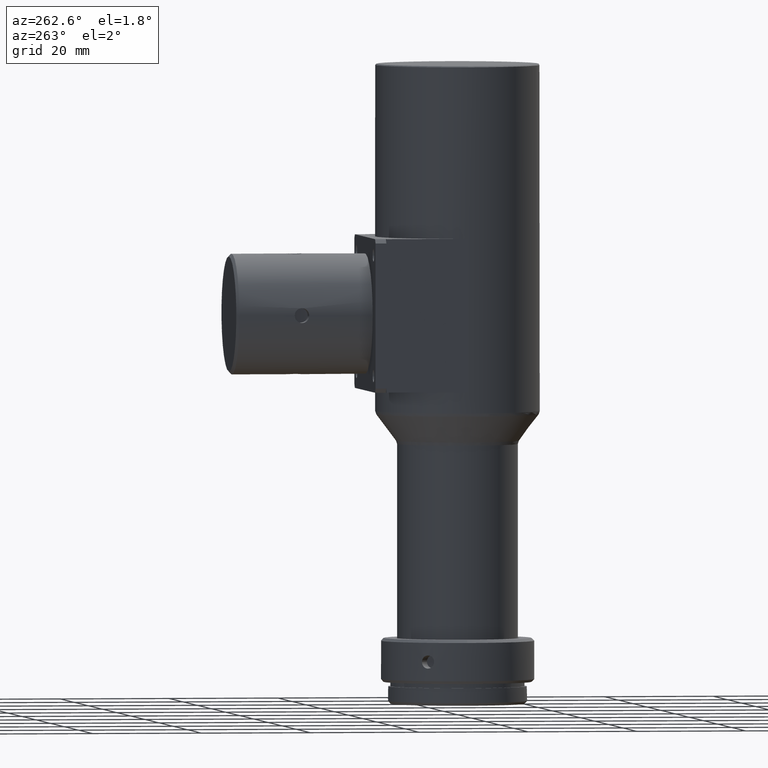
[diagram: clean part render]
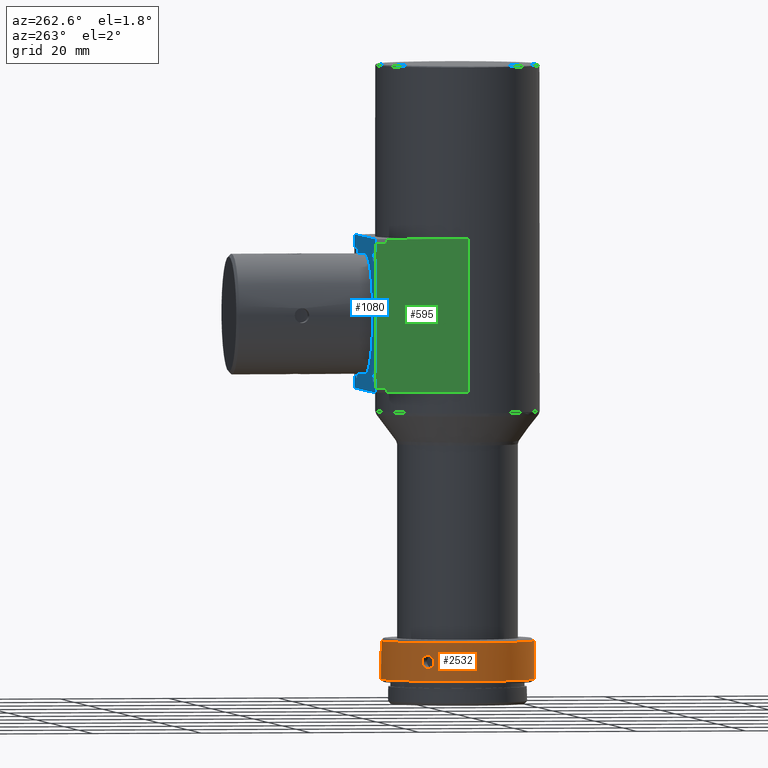
[diagram: same view with three faces highlighted in distinct colors, each labeled with its STEP entity id]
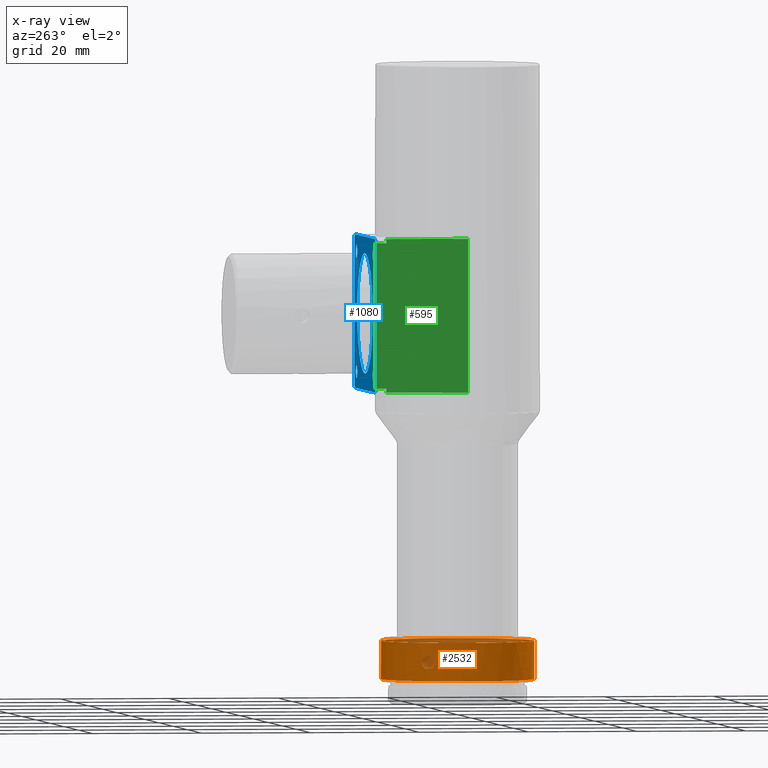
[diagram: x-ray of the same camera — body ghosted, the three highlighted faces saturated]
A machine part, auxiliary view with three faces highlighted in distinct colors.
The next image is the same camera in x-ray (body ghosted, the three faces saturated) — at least one of them is partly hidden behind the body in this view.
Their STEP definitions:

[orange] entity #2532 — the highlighted cylindrical surface (bore or boss wall) has radius 14 mm, axis along (-0, -0, -1).
#63 = ORIENTED_EDGE ( 'NONE', *, *, #2619, .T. ) ;
#86 = CARTESIAN_POINT ( 'NONE',  ( -12.04563829902935623, 7.136324246572051777, -170.4646117558068852 ) ) ;
#149 = CARTESIAN_POINT ( 'NONE',  ( -11.49781766735794619, 7.987731676516331980, -171.9790897566590218 ) ) ;
#168 = CARTESIAN_POINT ( 'NONE',  ( -12.47591255522987375, 6.353284482810009237, -170.7034524911672406 ) ) ;
#185 = CARTESIAN_POINT ( 'NONE',  ( 12.57582493408792246, 6.153122899020165626, -170.9265933695068327 ) ) ;
#209 = CARTESIAN_POINT ( 'NONE',  ( 12.66648685989428991, 5.963537257802882685, -171.9790897566591354 ) ) ;
#228 = CARTESIAN_POINT ( 'NONE',  ( 11.49781804328122092, 7.987731136800456433, -171.3499119140270750 ) ) ;
#231 = CARTESIAN_POINT ( 'NONE',  ( -12.67973509643317520, 5.935008430488867504, -171.6645019999996293 ) ) ;
#234 = CARTESIAN_POINT ( 'NONE',  ( 1.168668537167243615, -13.95126717392524540, -171.3499119140273876 ) ) ;
#249 = CARTESIAN_POINT ( 'NONE',  ( 11.74006151293639988, 7.627815874864832146, -170.7034524911672406 ) ) ;
#347 = CARTESIAN_POINT ( 'NONE',  ( 5.962159199744382422E-16, 6.053650600108246053E-07, -168.1645019999999988 ) ) ;
#371 = CARTESIAN_POINT ( 'NONE',  ( -11.96544981447181577, 7.269742819210320839, -172.8335708097708903 ) ) ;
#386 = CIRCLE ( 'NONE', #2667, 14.00000000000000000 ) ;
#458 = CARTESIAN_POINT ( 'NONE',  ( -0.9591522481458949478, -13.96754440792841834, -170.9265933695064916 ) ) ;
#492 = CARTESIAN_POINT ( 'NONE',  ( -0.6040710989305354550, -13.98770682369083218, -170.6159215315941537 ) ) ;
#511 = CARTESIAN_POINT ( 'NONE',  ( 11.47973509643327183, 8.013469399571357954, -171.6645019999996578 ) ) ;
#519 = CARTESIAN_POINT ( 'NONE',  ( 0.7358510422938839834, -13.98109854157969423, -170.7034524911675817 ) ) ;
#551 = CARTESIAN_POINT ( 'NONE',  ( 12.57622132325701791, 6.152338970170064592, -172.4016835648425570 ) ) ;
#552 = CARTESIAN_POINT ( 'NONE',  ( -12.67973509643317342, 5.935008430488867504, -171.6645019999996009 ) ) ;
#570 = CARTESIAN_POINT ( 'NONE',  ( 12.04563817782032942, 7.136324456483251311, -172.8643922440239749 ) ) ;
#691 = CARTESIAN_POINT ( 'NONE',  ( -11.61667268594169755, 7.814423325003350129, -170.9265933695068327 ) ) ;
#692 = FACE_OUTER_BOUND ( 'NONE', #3989, .T. ) ;
#712 = CARTESIAN_POINT ( 'NONE',  ( -11.56641004651955562, 7.888081323297368108, -172.2697255687883739 ) ) ;
#722 = B_SPLINE_CURVE_WITH_KNOTS ( 'NONE', 3,
 ( #511, #1757, #3959, #2979, #3367, #3006, #1136, #1346, #570, #1987, #2127, #3936, #1779, #551, #2367, #209, #3635, #3348, #2090, #2900, #185, #3230, #1492, #873, #3839, #3024, #1469, #1159, #249, #3328, #2389, #228, #2715, #1449 ),
 .UNSPECIFIED., .T., .F.,
 ( 4, 2, 2, 2, 2, 2, 2, 2, 2, 2, 2, 2, 2, 2, 2, 2, 4 ),
 ( 0.000000000000000000, 0.0004690820383315923549, 0.0009381640766631847098, 0.001407246114994777173, 0.001876328153326369420, 0.002345410191657961666, 0.002814492229989554346, 0.003283574268321146593, 0.003752656306652738839, 0.004221738344984331086, 0.004690820383315923332, 0.005159902421647515579, 0.005628984459979108693, 0.006098066498310700939, 0.006567148536642293186, 0.007036230574973885432, 0.007505312613305477679 ),
 .UNSPECIFIED. ) ;
#731 = CARTESIAN_POINT ( 'NONE',  ( -12.61457546067616065, 6.072573111311331928, -172.2693450483531024 ) ) ;
#745 = EDGE_CURVE ( 'NONE', #2150, #2150, #886, .T. ) ;
#751 = AXIS2_PLACEMENT_3D ( 'NONE', #2270, #2825, #2211 ) ;
#776 = CARTESIAN_POINT ( 'NONE',  ( -0.6037003333214177037, -13.98773284312312626, -172.7134405967849204 ) ) ;
#797 = CARTESIAN_POINT ( 'NONE',  ( -0.3153600330421824638, -13.99719229403402032, -170.4961822916816629 ) ) ;
#817 = CARTESIAN_POINT ( 'NONE',  ( -0.1574184133975961297, -13.99998998699663666, -170.4646117558068568 ) ) ;
#873 = CARTESIAN_POINT ( 'NONE',  ( 12.27960464907209648, 6.725487255111333162, -170.4961822916818335 ) ) ;
#886 = B_SPLINE_CURVE_WITH_KNOTS ( 'NONE', 3,
 ( #1040, #1386, #3534, #731, #1923, #998, #2618, #3857, #2008, #3251, #371, #1638, #2881, #2862, #712, #149, #1967, #2636, #1307, #2555, #691, #1943, #3188, #1326, #86, #1018, #3208, #2415, #168, #1406, #3939, #2350, #1138, #231 ),
 .UNSPECIFIED., .T., .F.,
 ( 4, 2, 2, 2, 2, 2, 2, 2, 2, 2, 2, 2, 2, 2, 2, 2, 4 ),
 ( 0.000000000000000000, 0.0004690820383315914876, 0.0009381640766631829751, 0.001407246114994774571, 0.001876328153326365950, 0.002345410191657957329, 0.002814492229989549142, 0.003283574268321140955, 0.003752656306652731900, 0.004221738344984323280, 0.004690820383315914659, 0.005159902421647508640, 0.005628984459979101754, 0.006098066498310694868, 0.006567148536642287114, 0.007036230574973881095, 0.007505312613305474209 ),
 .UNSPECIFIED. ) ;
#941 = EDGE_CURVE ( 'NONE', #3983, #3983, #386, .T. ) ;
#998 = CARTESIAN_POINT ( 'NONE',  ( -12.47681973012837098, 6.351477297083664375, -172.6236842398579086 ) ) ;
#1018 = CARTESIAN_POINT ( 'NONE',  ( -12.20223406017141876, 6.865129962040366962, -170.4643928306587384 ) ) ;
#1020 = CYLINDRICAL_SURFACE ( 'NONE', #751, 14.00000000000000000 ) ;
#1040 = CARTESIAN_POINT ( 'NONE',  ( -12.67973509643317520, 5.935008430488867504, -171.6645019999996293 ) ) ;
#1104 = CARTESIAN_POINT ( 'NONE',  ( 1.200000000000001288, -13.94847601396510228, -171.5058843588679451 ) ) ;
#1125 = CARTESIAN_POINT ( 'NONE',  ( 0.1574186557907336081, -13.99998998698213626, -172.8643922440240317 ) ) ;
#1136 = CARTESIAN_POINT ( 'NONE',  ( 11.81167396558167226, 7.516995962448086210, -172.7130820103820952 ) ) ;
#1138 = CARTESIAN_POINT ( 'NONE',  ( -12.67973509643315566, 5.935008430488913689, -171.5058843588676893 ) ) ;
#1159 = CARTESIAN_POINT ( 'NONE',  ( 11.81188280839828408, 7.516686416371892498, -170.6155629388684076 ) ) ;
#1161 = CARTESIAN_POINT ( 'NONE',  ( 2.333018817291281515E-16, 14.00000060536505941, -175.1645019999999988 ) ) ;
#1221 = EDGE_CURVE ( 'NONE', #1515, #1515, #3462, .T. ) ;
#1261 = DIRECTION ( 'NONE',  ( 5.184486260647288420E-17, 1.526556658859590243E-16, 1.000000000000000000 ) ) ;
#1307 = CARTESIAN_POINT ( 'NONE',  ( -11.49777068618074338, 7.987798810150340323, -171.3502419245555473 ) ) ;
#1326 = CARTESIAN_POINT ( 'NONE',  ( -11.96424461602945755, 7.271706855017800564, -170.4961822916818335 ) ) ;
#1346 = CARTESIAN_POINT ( 'NONE',  ( 11.96424436668541169, 7.271707268992499529, -172.8328216102502495 ) ) ;
#1352 = EDGE_CURVE ( 'NONE', #2110, #2110, #2024, .T. ) ;
#1376 = VERTEX_POINT ( 'NONE', #2299 ) ;
#1386 = CARTESIAN_POINT ( 'NONE',  ( -12.67973509643319296, 5.935008430488822206, -171.8231196411315977 ) ) ;
#1388 = CARTESIAN_POINT ( 'NONE',  ( -0.1557408493366666258, -14.00000875201926931, -172.8646111695103968 ) ) ;
#1399 = ORIENTED_EDGE ( 'NONE', *, *, #1221, .T. ) ;
#1406 = CARTESIAN_POINT ( 'NONE',  ( -12.57622083814005087, 6.152339960722194689, -170.9273190617896034 ) ) ;
#1435 = CARTESIAN_POINT ( 'NONE',  ( -1.168669192536353929, -13.95126711822408794, -171.9790897566586523 ) ) ;
#1449 = CARTESIAN_POINT ( 'NONE',  ( 11.47973509643327183, 8.013469399571357954, -171.6645019999996578 ) ) ;
#1469 = CARTESIAN_POINT ( 'NONE',  ( 11.96545006036802405, 7.269742410516419895, -170.4954330966668294 ) ) ;
#1476 = DIRECTION ( 'NONE',  ( 0.000000000000000000, 1.000000000000000000, 0.000000000000000000 ) ) ;
#1492 = CARTESIAN_POINT ( 'NONE',  ( 12.41574552373220008, 6.470713402526770075, -170.6159215315943527 ) ) ;
#1515 = VERTEX_POINT ( 'NONE', #3636 ) ;
#1581 = FACE_BOUND ( 'NONE', #2262, .T. ) ;
#1600 = FACE_BOUND ( 'NONE', #2837, .T. ) ;
#1638 = CARTESIAN_POINT ( 'NONE',  ( -11.81188234109551338, 7.516687154538401749, -172.7134405967850910 ) ) ;
#1639 = FACE_BOUND ( 'NONE', #3257, .T. ) ;
#1701 = CARTESIAN_POINT ( 'NONE',  ( 1.200000000000000844, -13.94847601396509518, -171.8231196411319672 ) ) ;
#1720 = CARTESIAN_POINT ( 'NONE',  ( 1.168751502260800379, -13.95125994051504748, -171.9787596858828636 ) ) ;
#1757 = CARTESIAN_POINT ( 'NONE',  ( 11.47973509643324164, 8.013469399571397034, -171.8231196411315693 ) ) ;
#1764 = CARTESIAN_POINT ( 'NONE',  ( 1.200000000000001066, -13.94847601396509873, -171.6645019999999420 ) ) ;
#1779 = CARTESIAN_POINT ( 'NONE',  ( 12.47591300181689178, 6.353283606907820236, -172.6255508028348800 ) ) ;
#1784 = CARTESIAN_POINT ( 'NONE',  ( -1.200000389481096441, -13.94847598045769921, -171.8231163823229508 ) ) ;
#1923 = CARTESIAN_POINT ( 'NONE',  ( -12.57582540686543737, 6.153121933569402735, -172.4024092900546918 ) ) ;
#1943 = CARTESIAN_POINT ( 'NONE',  ( -11.73895056768377820, 7.629504278801466199, -170.7053190452991771 ) ) ;
#1967 = CARTESIAN_POINT ( 'NONE',  ( -11.47973487267438841, 8.013469720118299833, -171.8231163823232919 ) ) ;
#1987 = CARTESIAN_POINT ( 'NONE',  ( 12.20223418138289517, 6.865129752124929041, -172.8646111695104537 ) ) ;
#2008 = CARTESIAN_POINT ( 'NONE',  ( -12.20305683361134541, 6.863667346594002794, -172.8643922440240033 ) ) ;
#2010 = CARTESIAN_POINT ( 'NONE',  ( 1.200000000000001066, -13.94847601396509873, -171.6645019999999420 ) ) ;
#2024 = CIRCLE ( 'NONE', #3131, 14.00000000000000000 ) ;
#2051 = CARTESIAN_POINT ( 'NONE',  ( -0.9600293450298589271, -13.96749572659355820, -172.4016835648423580 ) ) ;
#2073 = CARTESIAN_POINT ( 'NONE',  ( -0.7358520241407375817, -13.98109849038431385, -172.6255508028345957 ) ) ;
#2090 = CARTESIAN_POINT ( 'NONE',  ( 12.66652150873818528, 5.963463004092918851, -171.3502419245555473 ) ) ;
#2097 = CARTESIAN_POINT ( 'NONE',  ( 0.9591533206397332423, -13.96754433464036538, -172.4024092900549476 ) ) ;
#2107 = EDGE_LOOP ( 'NONE', ( #3351 ) ) ;
#2110 = VERTEX_POINT ( 'NONE', #1161 ) ;
#2127 = CARTESIAN_POINT ( 'NONE',  ( 12.27850634339006319, 6.727513005482759212, -172.8335708097709471 ) ) ;
#2150 = VERTEX_POINT ( 'NONE', #552 ) ;
#2211 = DIRECTION ( 'NONE',  ( 0.000000000000000000, 1.000000000000000000, 0.000000000000000000 ) ) ;
#2262 = EDGE_LOOP ( 'NONE', ( #1399 ) ) ;
#2270 = CARTESIAN_POINT ( 'NONE',  ( 0.000000000000000000, 6.053650582552843417E-07, -179.6645019999999988 ) ) ;
#2299 = CARTESIAN_POINT ( 'NONE',  ( 11.47973509643327361, 8.013469399571357954, -171.6645019999996009 ) ) ;
#2350 = CARTESIAN_POINT ( 'NONE',  ( -12.66648658044826803, 5.963537853219920137, -171.3499119140271034 ) ) ;
#2367 = CARTESIAN_POINT ( 'NONE',  ( 12.61448331209138551, 6.072765177272331449, -172.2697255687884308 ) ) ;
#2374 = CARTESIAN_POINT ( 'NONE',  ( -0.3130565289185237576, -13.99725400859795599, -172.8335708097708334 ) ) ;
#2389 = CARTESIAN_POINT ( 'NONE',  ( 11.56641062626775707, 7.888080474622765514, -171.0592767112186436 ) ) ;
#2390 = CARTESIAN_POINT ( 'NONE',  ( -14.00000000000000000, 6.053650600108246053E-07, -168.1645019999999988 ) ) ;
#2415 = CARTESIAN_POINT ( 'NONE',  ( -12.41558226879713089, 6.471048278459178960, -170.6155629388684360 ) ) ;
#2532 = ADVANCED_FACE ( 'NONE', ( #692, #1581, #2844, #1639, #1600 ), #1020, .T. ) ;
#2555 = CARTESIAN_POINT ( 'NONE',  ( -11.56629035170046649, 7.888256332237054913, -171.0596572926140198 ) ) ;
#2618 = CARTESIAN_POINT ( 'NONE',  ( -12.41574592215444994, 6.470712642236497558, -172.7130820103821520 ) ) ;
#2619 = EDGE_CURVE ( 'NONE', #1376, #1376, #722, .T. ) ;
#2621 = CARTESIAN_POINT ( 'NONE',  ( -0.7378687156203653785, -13.98098063673707081, -170.7053190452990350 ) ) ;
#2636 = CARTESIAN_POINT ( 'NONE',  ( -11.47973532019611298, 8.013469079018797459, -171.5058817244796217 ) ) ;
#2638 = CARTESIAN_POINT ( 'NONE',  ( -1.048073265571931367, -13.96084468447457461, -172.2697255687880045 ) ) ;
#2660 = CARTESIAN_POINT ( 'NONE',  ( -1.199999610511674364, -13.94847604747313063, -171.5058817244791953 ) ) ;
#2667 = AXIS2_PLACEMENT_3D ( 'NONE', #347, #1261, #3106 ) ;
#2682 = CARTESIAN_POINT ( 'NONE',  ( -1.168750822557247382, -13.95125999814815110, -171.3502419245551778 ) ) ;
#2715 = CARTESIAN_POINT ( 'NONE',  ( 11.47973509643330381, 8.013469399571315321, -171.5058843588677462 ) ) ;
#2825 = DIRECTION ( 'NONE',  ( -5.184486260647288420E-17, -1.526556658859590243E-16, -1.000000000000000000 ) ) ;
#2837 = EDGE_LOOP ( 'NONE', ( #63 ) ) ;
#2844 = FACE_OUTER_BOUND ( 'NONE', #2107, .T. ) ;
#2862 = CARTESIAN_POINT ( 'NONE',  ( -11.61619197822729710, 7.815158572518627444, -172.4016835648426422 ) ) ;
#2881 = CARTESIAN_POINT ( 'NONE',  ( -11.74006097767635914, 7.627816699571630110, -172.6255508028348231 ) ) ;
#2900 = CARTESIAN_POINT ( 'NONE',  ( 12.61457502686949361, 6.072574014048452540, -171.0596572926140482 ) ) ;
#2946 = CARTESIAN_POINT ( 'NONE',  ( 0.6036994603992911212, -13.98773287873592608, -170.6155629388684929 ) ) ;
#2979 = CARTESIAN_POINT ( 'NONE',  ( 11.56628978681051834, 7.888257159293211807, -172.2693450483530739 ) ) ;
#3006 = CARTESIAN_POINT ( 'NONE',  ( 11.73895003163727502, 7.629505104235770219, -172.6236842398579370 ) ) ;
#3011 = CARTESIAN_POINT ( 'NONE',  ( 0.3153605162269925155, -13.99719228508310565, -172.8328216102504769 ) ) ;
#3024 = CARTESIAN_POINT ( 'NONE',  ( 12.04649345323287868, 7.134880606059534003, -170.4643928306587668 ) ) ;
#3028 = CARTESIAN_POINT ( 'NONE',  ( -1.048284675168741797, -13.96082853019040826, -171.0596572926137355 ) ) ;
#3106 = DIRECTION ( 'NONE',  ( -1.000000000000000000, 0.000000000000000000, 0.000000000000000000 ) ) ;
#3112 = CARTESIAN_POINT ( 'NONE',  ( 2.333018817291281515E-16, 6.053650589422349441E-07, -175.1645019999999988 ) ) ;
#3131 = AXIS2_PLACEMENT_3D ( 'NONE', #3112, #3661, #1476 ) ;
#3138 = ORIENTED_EDGE ( 'NONE', *, *, #941, .F. ) ;
#3188 = CARTESIAN_POINT ( 'NONE',  ( -11.81167442480124130, 7.516995237259163076, -170.6159215315943811 ) ) ;
#3208 = CARTESIAN_POINT ( 'NONE',  ( -12.27850611239885836, 6.727513422782075203, -170.4954330966668579 ) ) ;
#3230 = CARTESIAN_POINT ( 'NONE',  ( 12.47681928330454504, 6.351478174030702029, -170.7053190452993192 ) ) ;
#3251 = CARTESIAN_POINT ( 'NONE',  ( -12.04649333204651818, 7.134880815989462555, -172.8646111695104253 ) ) ;
#3254 = CARTESIAN_POINT ( 'NONE',  ( 1.048072240724242876, -13.96084476221393089, -171.0592767112190131 ) ) ;
#3257 = EDGE_LOOP ( 'NONE', ( #3300 ) ) ;
#3274 = CARTESIAN_POINT ( 'NONE',  ( 0.3130560520313105943, -13.99725401720335682, -170.4954330966670000 ) ) ;
#3300 = ORIENTED_EDGE ( 'NONE', *, *, #745, .T. ) ;
#3313 = CARTESIAN_POINT ( 'NONE',  ( 0.1557406069390261383, -14.00000875200477601, -170.4643928306587952 ) ) ;
#3328 = CARTESIAN_POINT ( 'NONE',  ( 11.61619259351211753, 7.815157657118949608, -170.9273190617896319 ) ) ;
#3334 = CARTESIAN_POINT ( 'NONE',  ( 0.6040719565725352069, -13.98770678858946859, -172.7130820103823794 ) ) ;
#3348 = CARTESIAN_POINT ( 'NONE',  ( 12.67973493070792834, 5.935008784549447469, -171.5058817244796501 ) ) ;
#3351 = ORIENTED_EDGE ( 'NONE', *, *, #1352, .T. ) ;
#3367 = CARTESIAN_POINT ( 'NONE',  ( 11.61667208622556124, 7.814424217166073383, -172.4024092900546350 ) ) ;
#3462 = B_SPLINE_CURVE_WITH_KNOTS ( 'NONE', 3,
 ( #2010, #1701, #1720, #3619, #2097, #3576, #3334, #3011, #1125, #1388, #2374, #776, #2073, #2051, #2638, #1435, #1784, #2660, #2682, #3028, #458, #2621, #492, #797, #817, #3313, #3274, #2946, #519, #3859, #3254, #234, #1104, #1764 ),
 .UNSPECIFIED., .T., .F.,
 ( 4, 2, 2, 2, 2, 2, 2, 2, 2, 2, 2, 2, 2, 2, 2, 2, 4 ),
 ( 0.000000000000000000, 0.0004690820383315926802, 0.0009381640766631853603, 0.001407246114994778041, 0.001876328153326370287, 0.002345410191657962967, 0.002814492229989555214, 0.003283574268321147460, 0.003752656306652739707, 0.004221738344984331953, 0.004690820383315925067, 0.005159902421647517314, 0.005628984459979110427, 0.006098066498310703541, 0.006567148536642295788, 0.007036230574973888902, 0.007505312613305481148 ),
 .UNSPECIFIED. ) ;
#3534 = CARTESIAN_POINT ( 'NONE',  ( -12.66652179867814709, 5.963462386636000367, -171.9787596858823804 ) ) ;
#3576 = CARTESIAN_POINT ( 'NONE',  ( 0.7378696984908799106, -13.98098058522432829, -172.6236842398583349 ) ) ;
#3619 = CARTESIAN_POINT ( 'NONE',  ( 1.048285673865546608, -13.96082845450943211, -172.2693450483535287 ) ) ;
#3635 = CARTESIAN_POINT ( 'NONE',  ( 12.67973526215552305, 5.935008076434518109, -171.8231163823232919 ) ) ;
#3636 = CARTESIAN_POINT ( 'NONE',  ( 1.200000000000000844, -13.94847601396509518, -171.6645019999999988 ) ) ;
#3661 = DIRECTION ( 'NONE',  ( 5.184486260647288420E-17, 1.526556658859590243E-16, 1.000000000000000000 ) ) ;
#3839 = CARTESIAN_POINT ( 'NONE',  ( 12.20305671242742562, 6.863667556519701840, -170.4646117558068852 ) ) ;
#3857 = CARTESIAN_POINT ( 'NONE',  ( -12.27960488291269492, 6.725486832185717745, -172.8328216102503063 ) ) ;
#3859 = CARTESIAN_POINT ( 'NONE',  ( 0.9600282446282788484, -13.96749580174599892, -170.9273190617898877 ) ) ;
#3936 = CARTESIAN_POINT ( 'NONE',  ( 12.41558267441669372, 6.471047504679849460, -172.7134405967850626 ) ) ;
#3939 = CARTESIAN_POINT ( 'NONE',  ( -12.61448286699171994, 6.072766103686304540, -171.0592767112186721 ) ) ;
#3959 = CARTESIAN_POINT ( 'NONE',  ( 11.49777029641734316, 7.987799369974167618, -171.9787596858823804 ) ) ;
#3983 = VERTEX_POINT ( 'NONE', #2390 ) ;
#3989 = EDGE_LOOP ( 'NONE', ( #3138 ) ) ;

[blue] entity #1080 — the highlighted planar face has unit normal (0, -1, 0).
#34 = EDGE_CURVE ( 'NONE', #2586, #2857, #3967, .T. ) ;
#41 = DIRECTION ( 'NONE',  ( -1.000000000000000000, 0.000000000000000000, -6.245004513516504751E-15 ) ) ;
#59 = CARTESIAN_POINT ( 'NONE',  ( 10.85000608046351545, 17.00000121073015791, -119.4650000000000460 ) ) ;
#68 = AXIS2_PLACEMENT_3D ( 'NONE', #3053, #2187, #638 ) ;
#136 = EDGE_LOOP ( 'NONE', ( #1856 ) ) ;
#141 = ORIENTED_EDGE ( 'NONE', *, *, #3261, .F. ) ;
#152 = CARTESIAN_POINT ( 'NONE',  ( -14.99999391953647354, 17.00000121073015436, -95.23624344467708625 ) ) ;
#273 = CARTESIAN_POINT ( 'NONE',  ( 6.080463517699679032E-06, 17.00000121073015436, -108.4650000000000460 ) ) ;
#290 = LINE ( 'NONE', #1826, #2983 ) ;
#309 = CARTESIAN_POINT ( 'NONE',  ( -13.14999391953647567, 17.00000121073015791, -97.46500000000004604 ) ) ;
#340 = DIRECTION ( 'NONE',  ( 1.000000000000000000, 6.538695102331599470E-17, 0.000000000000000000 ) ) ;
#385 = CARTESIAN_POINT ( 'NONE',  ( 15.00000608046351935, 17.00000121073016146, -121.6937565553229916 ) ) ;
#410 = DIRECTION ( 'NONE',  ( 1.000000000000000000, 6.538695102331599470E-17, 0.000000000000000000 ) ) ;
#444 = VERTEX_POINT ( 'NONE', #2885 ) ;
#494 = VECTOR ( 'NONE', #675, 1000.000000000000000 ) ;
#522 = ORIENTED_EDGE ( 'NONE', *, *, #2446, .T. ) ;
#524 = DIRECTION ( 'NONE',  ( -6.538695102331599470E-17, 1.000000000000000000, -1.656432020930319772E-17 ) ) ;
#571 = CARTESIAN_POINT ( 'NONE',  ( 10.85000608046351900, 17.00000121073015791, -97.46500000000004604 ) ) ;
#583 = FACE_BOUND ( 'NONE', #990, .T. ) ;
#597 = CARTESIAN_POINT ( 'NONE',  ( 12.00000608046351580, 17.00000121073015791, -97.46500000000004604 ) ) ;
#608 = CARTESIAN_POINT ( 'NONE',  ( 6.080463517699679032E-06, 17.00000121073015436, -108.4650000000000460 ) ) ;
#631 = AXIS2_PLACEMENT_3D ( 'NONE', #1375, #3560, #3296 ) ;
#638 = DIRECTION ( 'NONE',  ( -1.000000000000000000, 0.000000000000000000, 0.000000000000000000 ) ) ;
#642 = PLANE ( 'NONE',  #649 ) ;
#649 = AXIS2_PLACEMENT_3D ( 'NONE', #3117, #865, #340 ) ;
#675 = DIRECTION ( 'NONE',  ( -5.184486260647205220E-17, -0.000000000000000000, -1.000000000000000000 ) ) ;
#758 = DIRECTION ( 'NONE',  ( 1.000000000000000000, 0.000000000000000000, 0.000000000000000000 ) ) ;
#759 = VERTEX_POINT ( 'NONE', #309 ) ;
#857 = ORIENTED_EDGE ( 'NONE', *, *, #3964, .F. ) ;
#865 = DIRECTION ( 'NONE',  ( 6.538695102331599470E-17, -1.000000000000000000, 3.469446951953612956E-17 ) ) ;
#878 = DIRECTION ( 'NONE',  ( -1.000000000000000000, 0.000000000000000000, 0.000000000000000000 ) ) ;
#899 = ORIENTED_EDGE ( 'NONE', *, *, #3737, .F. ) ;
#959 = AXIS2_PLACEMENT_3D ( 'NONE', #3135, #2271, #3517 ) ;
#984 = ORIENTED_EDGE ( 'NONE', *, *, #3270, .F. ) ;
#990 = EDGE_LOOP ( 'NONE', ( #3100 ) ) ;
#1014 = CARTESIAN_POINT ( 'NONE',  ( 6.080463517699679032E-06, 17.00000121073016146, -108.4650000000000460 ) ) ;
#1026 = DIRECTION ( 'NONE',  ( -1.000000000000000000, 0.000000000000000000, 0.000000000000000000 ) ) ;
#1080 = ADVANCED_FACE ( 'NONE', ( #1870, #1254, #1544, #2502, #583, #1834 ), #642, .F. ) ;
#1091 = EDGE_LOOP ( 'NONE', ( #2933 ) ) ;
#1137 = VERTEX_POINT ( 'NONE', #571 ) ;
#1216 = VERTEX_POINT ( 'NONE', #152 ) ;
#1248 = DIRECTION ( 'NONE',  ( -1.000000000000000000, -6.538695102331599470E-17, -0.000000000000000000 ) ) ;
#1254 = FACE_BOUND ( 'NONE', #2874, .T. ) ;
#1287 = CARTESIAN_POINT ( 'NONE',  ( 15.00000608046352113, 17.00000121073016146, -88.46500000000000341 ) ) ;
#1324 = CARTESIAN_POINT ( 'NONE',  ( 6.080463517699678185E-06, 17.00000121073015791, -122.4650000000000460 ) ) ;
#1335 = CARTESIAN_POINT ( 'NONE',  ( 14.28286293754922021, 17.00000121073016146, -94.46500000000001762 ) ) ;
#1354 = VERTEX_POINT ( 'NONE', #1932 ) ;
#1360 = CIRCLE ( 'NONE', #2673, 1.149999999999998135 ) ;
#1363 = EDGE_CURVE ( 'NONE', #2092, #2092, #2414, .T. ) ;
#1375 = CARTESIAN_POINT ( 'NONE',  ( 6.080463517699679032E-06, 17.00000121073016146, -108.4650000000000460 ) ) ;
#1401 = EDGE_CURVE ( 'NONE', #1137, #1137, #1360, .T. ) ;
#1422 = EDGE_CURVE ( 'NONE', #1442, #1216, #3584, .T. ) ;
#1428 = CARTESIAN_POINT ( 'NONE',  ( -14.99999391953647354, 17.00000121073015436, -88.46500000000000341 ) ) ;
#1442 = VERTEX_POINT ( 'NONE', #2595 ) ;
#1485 = AXIS2_PLACEMENT_3D ( 'NONE', #2378, #524, #758 ) ;
#1520 = DIRECTION ( 'NONE',  ( 6.538695102331599470E-17, -1.000000000000000000, 1.656432020930319772E-17 ) ) ;
#1544 = FACE_BOUND ( 'NONE', #136, .T. ) ;
#1606 = DIRECTION ( 'NONE',  ( -6.538695102331599470E-17, 1.000000000000000000, -1.656432020930319772E-17 ) ) ;
#1611 = ORIENTED_EDGE ( 'NONE', *, *, #34, .F. ) ;
#1633 = VERTEX_POINT ( 'NONE', #1335 ) ;
#1734 = CARTESIAN_POINT ( 'NONE',  ( 14.28286293754921843, 17.00000121073016146, -122.4650000000000176 ) ) ;
#1808 = AXIS2_PLACEMENT_3D ( 'NONE', #608, #3363, #41 ) ;
#1826 = CARTESIAN_POINT ( 'NONE',  ( 6.080463517699678185E-06, 17.00000121073015791, -94.46500000000004604 ) ) ;
#1834 = FACE_BOUND ( 'NONE', #1091, .T. ) ;
#1856 = ORIENTED_EDGE ( 'NONE', *, *, #1363, .F. ) ;
#1870 = FACE_OUTER_BOUND ( 'NONE', #2510, .T. ) ;
#1932 = CARTESIAN_POINT ( 'NONE',  ( 11.00000608046351402, 17.00000121073015791, -108.4650000000000460 ) ) ;
#2035 = ORIENTED_EDGE ( 'NONE', *, *, #3021, .F. ) ;
#2072 = CIRCLE ( 'NONE', #631, 20.00000000000000355 ) ;
#2082 = AXIS2_PLACEMENT_3D ( 'NONE', #1014, #2287, #2263 ) ;
#2092 = VERTEX_POINT ( 'NONE', #2760 ) ;
#2114 = DIRECTION ( 'NONE',  ( -6.538695102331599470E-17, 1.000000000000000000, -1.656432020930319772E-17 ) ) ;
#2142 = CIRCLE ( 'NONE', #1485, 10.99999999999999645 ) ;
#2187 = DIRECTION ( 'NONE',  ( -6.538695102331599470E-17, 1.000000000000000000, -1.656432020930319772E-17 ) ) ;
#2197 = CIRCLE ( 'NONE', #1808, 20.00000000000000355 ) ;
#2263 = DIRECTION ( 'NONE',  ( -1.000000000000000000, 0.000000000000000000, 2.012279232133095914E-14 ) ) ;
#2271 = DIRECTION ( 'NONE',  ( -6.538695102331599470E-17, 1.000000000000000000, -1.656432020930319772E-17 ) ) ;
#2287 = DIRECTION ( 'NONE',  ( 6.538695102331599470E-17, -1.000000000000000000, 1.656432020930319772E-17 ) ) ;
#2301 = ORIENTED_EDGE ( 'NONE', *, *, #3631, .F. ) ;
#2328 = LINE ( 'NONE', #1428, #3429 ) ;
#2368 = DIRECTION ( 'NONE',  ( -5.184486260647205220E-17, -0.000000000000000000, -1.000000000000000000 ) ) ;
#2372 = EDGE_LOOP ( 'NONE', ( #2301 ) ) ;
#2378 = CARTESIAN_POINT ( 'NONE',  ( 6.080463517699678185E-06, 17.00000121073015791, -108.4650000000000460 ) ) ;
#2414 = CIRCLE ( 'NONE', #68, 1.149999999999998135 ) ;
#2446 = EDGE_CURVE ( 'NONE', #3871, #2857, #3755, .T. ) ;
#2465 = CIRCLE ( 'NONE', #959, 1.149999999999998135 ) ;
#2502 = FACE_BOUND ( 'NONE', #2372, .T. ) ;
#2510 = EDGE_LOOP ( 'NONE', ( #899, #141, #522, #1611, #2870, #2035, #857, #3853 ) ) ;
#2523 = CARTESIAN_POINT ( 'NONE',  ( 12.00000608046351402, 17.00000121073015791, -119.4650000000000460 ) ) ;
#2542 = AXIS2_PLACEMENT_3D ( 'NONE', #273, #1520, #4006 ) ;
#2586 = VERTEX_POINT ( 'NONE', #1734 ) ;
#2595 = CARTESIAN_POINT ( 'NONE',  ( -14.28285077662218860, 17.00000121073015791, -94.46500000000004604 ) ) ;
#2673 = AXIS2_PLACEMENT_3D ( 'NONE', #597, #2114, #878 ) ;
#2721 = CIRCLE ( 'NONE', #3957, 1.149999999999998135 ) ;
#2744 = CARTESIAN_POINT ( 'NONE',  ( 15.00000608046352113, 17.00000121073016146, -95.23624344467710046 ) ) ;
#2760 = CARTESIAN_POINT ( 'NONE',  ( -13.14999391953647923, 17.00000121073015791, -119.4650000000000460 ) ) ;
#2857 = VERTEX_POINT ( 'NONE', #385 ) ;
#2870 = ORIENTED_EDGE ( 'NONE', *, *, #3872, .F. ) ;
#2874 = EDGE_LOOP ( 'NONE', ( #984 ) ) ;
#2885 = CARTESIAN_POINT ( 'NONE',  ( -14.28285077662218328, 17.00000121073015436, -122.4650000000000460 ) ) ;
#2933 = ORIENTED_EDGE ( 'NONE', *, *, #3164, .F. ) ;
#2983 = VECTOR ( 'NONE', #1248, 1000.000000000000000 ) ;
#3021 = EDGE_CURVE ( 'NONE', #3365, #444, #2197, .T. ) ;
#3053 = CARTESIAN_POINT ( 'NONE',  ( -11.99999391953648065, 17.00000121073015791, -119.4650000000000460 ) ) ;
#3096 = CARTESIAN_POINT ( 'NONE',  ( -14.99999391953647532, 17.00000121073015436, -121.6937565553230058 ) ) ;
#3100 = ORIENTED_EDGE ( 'NONE', *, *, #1401, .F. ) ;
#3117 = CARTESIAN_POINT ( 'NONE',  ( 6.080463517699678185E-06, 17.00000121073015791, -108.4650000000000460 ) ) ;
#3135 = CARTESIAN_POINT ( 'NONE',  ( -11.99999391953647709, 17.00000121073015791, -97.46500000000004604 ) ) ;
#3164 = EDGE_CURVE ( 'NONE', #3480, #3480, #2721, .T. ) ;
#3261 = EDGE_CURVE ( 'NONE', #3871, #1633, #2072, .T. ) ;
#3270 = EDGE_CURVE ( 'NONE', #1354, #1354, #2142, .T. ) ;
#3296 = DIRECTION ( 'NONE',  ( -1.000000000000000000, 0.000000000000000000, 0.000000000000000000 ) ) ;
#3363 = DIRECTION ( 'NONE',  ( 6.538695102331599470E-17, -1.000000000000000000, 1.656432020930319772E-17 ) ) ;
#3365 = VERTEX_POINT ( 'NONE', #3096 ) ;
#3371 = LINE ( 'NONE', #1324, #3760 ) ;
#3429 = VECTOR ( 'NONE', #2368, 1000.000000000000000 ) ;
#3480 = VERTEX_POINT ( 'NONE', #59 ) ;
#3517 = DIRECTION ( 'NONE',  ( -1.000000000000000000, 0.000000000000000000, 0.000000000000000000 ) ) ;
#3560 = DIRECTION ( 'NONE',  ( 6.538695102331599470E-17, -1.000000000000000000, 1.656432020930319772E-17 ) ) ;
#3584 = CIRCLE ( 'NONE', #2542, 20.00000000000000355 ) ;
#3631 = EDGE_CURVE ( 'NONE', #759, #759, #2465, .T. ) ;
#3737 = EDGE_CURVE ( 'NONE', #1633, #1442, #290, .T. ) ;
#3755 = LINE ( 'NONE', #1287, #494 ) ;
#3760 = VECTOR ( 'NONE', #410, 1000.000000000000000 ) ;
#3853 = ORIENTED_EDGE ( 'NONE', *, *, #1422, .F. ) ;
#3871 = VERTEX_POINT ( 'NONE', #2744 ) ;
#3872 = EDGE_CURVE ( 'NONE', #444, #2586, #3371, .T. ) ;
#3957 = AXIS2_PLACEMENT_3D ( 'NONE', #2523, #1606, #1026 ) ;
#3964 = EDGE_CURVE ( 'NONE', #1216, #3365, #2328, .T. ) ;
#3967 = CIRCLE ( 'NONE', #2082, 20.00000000000000355 ) ;
#4006 = DIRECTION ( 'NONE',  ( -1.000000000000000000, 0.000000000000000000, 1.179611963664228666E-14 ) ) ;

[green] entity #595 — the highlighted planar face has unit normal (-1, -0, 0).
#14 = LINE ( 'NONE', #1884, #1501 ) ;
#22 = EDGE_CURVE ( 'NONE', #2416, #3220, #728, .T. ) ;
#36 = DIRECTION ( 'NONE',  ( -3.469446951952833802E-18, 1.000000000000000000, 1.798730005444379160E-34 ) ) ;
#152 = CARTESIAN_POINT ( 'NONE',  ( -14.99999391953647354, 17.00000121073015436, -95.23624344467708625 ) ) ;
#274 = FACE_OUTER_BOUND ( 'NONE', #2126, .T. ) ;
#316 = CARTESIAN_POINT ( 'NONE',  ( -14.99999391953647354, 1.210730153169016440E-06, -88.46500000000000341 ) ) ;
#595 = ADVANCED_FACE ( 'NONE', ( #274 ), #1886, .T. ) ;
#667 = CARTESIAN_POINT ( 'NONE',  ( -14.99999391953647354, 15.00000121073014903, -88.46500000000000341 ) ) ;
#728 = LINE ( 'NONE', #2592, #2989 ) ;
#825 = VECTOR ( 'NONE', #2768, 1000.000000000000000 ) ;
#864 = CARTESIAN_POINT ( 'NONE',  ( -14.99999391953647354, 1.210730153169016440E-06, -95.23624344467708625 ) ) ;
#912 = EDGE_CURVE ( 'NONE', #1738, #3220, #1862, .T. ) ;
#934 = ORIENTED_EDGE ( 'NONE', *, *, #3964, .T. ) ;
#1008 = CARTESIAN_POINT ( 'NONE',  ( -14.99999695976824299, 6.053650718215255964E-07, -94.46500000000000341 ) ) ;
#1157 = ORIENTED_EDGE ( 'NONE', *, *, #3529, .T. ) ;
#1200 = ORIENTED_EDGE ( 'NONE', *, *, #3465, .T. ) ;
#1216 = VERTEX_POINT ( 'NONE', #152 ) ;
#1246 = DIRECTION ( 'NONE',  ( -4.365703198835899323E-18, -1.387778780781445676E-16, -1.000000000000000000 ) ) ;
#1272 = VERTEX_POINT ( 'NONE', #2804 ) ;
#1281 = EDGE_CURVE ( 'NONE', #3365, #2147, #14, .T. ) ;
#1282 = VECTOR ( 'NONE', #2423, 1000.000000000000000 ) ;
#1288 = LINE ( 'NONE', #1947, #3435 ) ;
#1323 = DIRECTION ( 'NONE',  ( 3.469446951952833802E-18, -1.000000000000000000, -1.798730005444379160E-34 ) ) ;
#1428 = CARTESIAN_POINT ( 'NONE',  ( -14.99999391953647354, 17.00000121073015436, -88.46500000000000341 ) ) ;
#1501 = VECTOR ( 'NONE', #1539, 1000.000000000000000 ) ;
#1535 = CARTESIAN_POINT ( 'NONE',  ( -14.99999695976824121, 6.053650761881714455E-07, -63.00000000000000000 ) ) ;
#1539 = DIRECTION ( 'NONE',  ( 3.469446951952833802E-18, -1.000000000000000000, -1.798730005444379160E-34 ) ) ;
#1607 = ORIENTED_EDGE ( 'NONE', *, *, #1281, .T. ) ;
#1623 = EDGE_CURVE ( 'NONE', #2147, #2416, #1915, .T. ) ;
#1738 = VERTEX_POINT ( 'NONE', #1008 ) ;
#1862 = LINE ( 'NONE', #1535, #3580 ) ;
#1884 = CARTESIAN_POINT ( 'NONE',  ( -14.99999391953647532, 1.210730153169016440E-06, -121.6937565553230058 ) ) ;
#1886 = PLANE ( 'NONE',  #3317 ) ;
#1915 = LINE ( 'NONE', #667, #1956 ) ;
#1946 = CARTESIAN_POINT ( 'NONE',  ( -14.99999391953647709, 15.00000121073014903, -122.4650000000000034 ) ) ;
#1947 = CARTESIAN_POINT ( 'NONE',  ( -14.99999391953647354, 1.210730153169016440E-06, -94.46499999999998920 ) ) ;
#1956 = VECTOR ( 'NONE', #3505, 1000.000000000000000 ) ;
#2126 = EDGE_LOOP ( 'NONE', ( #1607, #3163, #3154, #2886, #1157, #2392, #1200, #934 ) ) ;
#2139 = LINE ( 'NONE', #3973, #1282 ) ;
#2147 = VERTEX_POINT ( 'NONE', #2604 ) ;
#2205 = CARTESIAN_POINT ( 'NONE',  ( -14.99999391953647354, 15.00000121073015258, -94.46500000000001762 ) ) ;
#2328 = LINE ( 'NONE', #1428, #3429 ) ;
#2368 = DIRECTION ( 'NONE',  ( -5.184486260647205220E-17, -0.000000000000000000, -1.000000000000000000 ) ) ;
#2392 = ORIENTED_EDGE ( 'NONE', *, *, #3455, .T. ) ;
#2416 = VERTEX_POINT ( 'NONE', #1946 ) ;
#2423 = DIRECTION ( 'NONE',  ( -5.184486260647205220E-17, -0.000000000000000000, -1.000000000000000000 ) ) ;
#2592 = CARTESIAN_POINT ( 'NONE',  ( -14.99999391953647532, 1.210730153169016440E-06, -122.4650000000000034 ) ) ;
#2604 = CARTESIAN_POINT ( 'NONE',  ( -14.99999391953647532, 15.00000121073014903, -121.6937565553230058 ) ) ;
#2605 = CARTESIAN_POINT ( 'NONE',  ( -14.99999695976823588, 9.080477349377908009E-07, -122.4650000000000034 ) ) ;
#2731 = VERTEX_POINT ( 'NONE', #2205 ) ;
#2768 = DIRECTION ( 'NONE',  ( -3.469446951952833802E-18, 1.000000000000000000, 1.798730005444379160E-34 ) ) ;
#2804 = CARTESIAN_POINT ( 'NONE',  ( -14.99999391953647354, 15.00000121073015080, -95.23624344467708625 ) ) ;
#2806 = DIRECTION ( 'NONE',  ( -1.000000000000000000, -3.469446951952833802E-18, 5.184486260647205220E-17 ) ) ;
#2886 = ORIENTED_EDGE ( 'NONE', *, *, #912, .F. ) ;
#2989 = VECTOR ( 'NONE', #1323, 1000.000000000000000 ) ;
#3096 = CARTESIAN_POINT ( 'NONE',  ( -14.99999391953647532, 17.00000121073015436, -121.6937565553230058 ) ) ;
#3154 = ORIENTED_EDGE ( 'NONE', *, *, #22, .T. ) ;
#3163 = ORIENTED_EDGE ( 'NONE', *, *, #1623, .T. ) ;
#3220 = VERTEX_POINT ( 'NONE', #2605 ) ;
#3317 = AXIS2_PLACEMENT_3D ( 'NONE', #316, #2806, #3736 ) ;
#3365 = VERTEX_POINT ( 'NONE', #3096 ) ;
#3429 = VECTOR ( 'NONE', #2368, 1000.000000000000000 ) ;
#3435 = VECTOR ( 'NONE', #36, 1000.000000000000000 ) ;
#3455 = EDGE_CURVE ( 'NONE', #2731, #1272, #2139, .T. ) ;
#3465 = EDGE_CURVE ( 'NONE', #1272, #1216, #3665, .T. ) ;
#3505 = DIRECTION ( 'NONE',  ( -5.184486260647205220E-17, -0.000000000000000000, -1.000000000000000000 ) ) ;
#3529 = EDGE_CURVE ( 'NONE', #1738, #2731, #1288, .T. ) ;
#3580 = VECTOR ( 'NONE', #1246, 1000.000000000000000 ) ;
#3665 = LINE ( 'NONE', #864, #825 ) ;
#3736 = DIRECTION ( 'NONE',  ( 5.184486260647205220E-17, 0.000000000000000000, 1.000000000000000000 ) ) ;
#3964 = EDGE_CURVE ( 'NONE', #1216, #3365, #2328, .T. ) ;
#3973 = CARTESIAN_POINT ( 'NONE',  ( -14.99999391953647354, 15.00000121073015258, -88.46500000000000341 ) ) ;